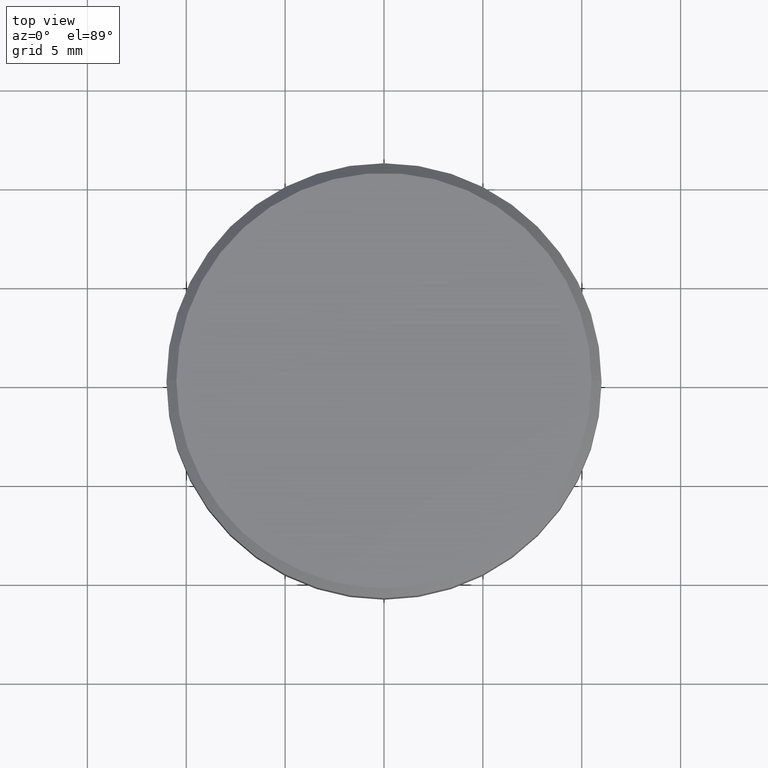
[diagram: clean part render]
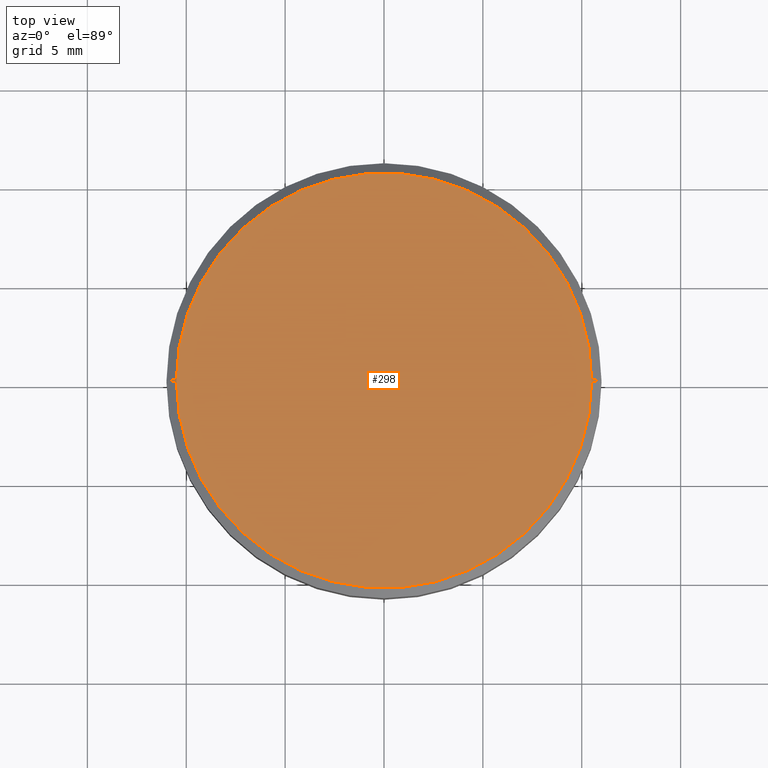
[diagram: same view with one face highlighted and labeled with its STEP entity id]
A machine part, top view. The second image highlights one B-rep face of the part: STEP entity #298.
In plain terms, the highlighted planar face has unit normal (0, -0, 1).
Its self-contained STEP definition (entity closure, byte-faithful):
#22 = DIRECTION ( 'NONE',  ( 1.000000000000000000, 0.000000000000000000, 0.000000000000000000 ) ) ;
#39 = DIRECTION ( 'NONE',  ( 1.000000000000000000, 0.000000000000000000, 0.000000000000000000 ) ) ;
#40 = AXIS2_PLACEMENT_3D ( 'NONE', #261, #263, #22 ) ;
#50 = DIRECTION ( 'NONE',  ( 0.000000000000000000, -0.000000000000000000, 1.000000000000000000 ) ) ;
#78 = ORIENTED_EDGE ( 'NONE', *, *, #176, .T. ) ;
#124 = CIRCLE ( 'NONE', #283, 10.49999999999999822 ) ;
#151 = VERTEX_POINT ( 'NONE', #211 ) ;
#176 = EDGE_CURVE ( 'NONE', #348, #151, #124, .T. ) ;
#211 = CARTESIAN_POINT ( 'NONE',  ( -10.49999999999999822, 0.000000000000000000, 0.000000000000000000 ) ) ;
#223 = CARTESIAN_POINT ( 'NONE',  ( 0.000000000000000000, 0.000000000000000000, 0.000000000000000000 ) ) ;
#225 = DIRECTION ( 'NONE',  ( 1.000000000000000000, 0.000000000000000000, 0.000000000000000000 ) ) ;
#239 = DIRECTION ( 'NONE',  ( -0.000000000000000000, -0.000000000000000000, 1.000000000000000000 ) ) ;
#258 = CARTESIAN_POINT ( 'NONE',  ( 10.49999999999999822, 1.316495309083404420E-15, 0.000000000000000000 ) ) ;
#261 = CARTESIAN_POINT ( 'NONE',  ( 0.000000000000000000, 0.000000000000000000, 0.000000000000000000 ) ) ;
#263 = DIRECTION ( 'NONE',  ( -0.000000000000000000, -0.000000000000000000, 1.000000000000000000 ) ) ;
#283 = AXIS2_PLACEMENT_3D ( 'NONE', #315, #239, #39 ) ;
#289 = EDGE_CURVE ( 'NONE', #151, #348, #375, .T. ) ;
#298 = ADVANCED_FACE ( 'NONE', ( #328 ), #397, .T. ) ;
#312 = EDGE_LOOP ( 'NONE', ( #371, #78 ) ) ;
#315 = CARTESIAN_POINT ( 'NONE',  ( 0.000000000000000000, 0.000000000000000000, 0.000000000000000000 ) ) ;
#316 = AXIS2_PLACEMENT_3D ( 'NONE', #223, #50, #225 ) ;
#328 = FACE_OUTER_BOUND ( 'NONE', #312, .T. ) ;
#348 = VERTEX_POINT ( 'NONE', #258 ) ;
#371 = ORIENTED_EDGE ( 'NONE', *, *, #289, .T. ) ;
#375 = CIRCLE ( 'NONE', #40, 10.49999999999999822 ) ;
#397 = PLANE ( 'NONE',  #316 ) ;